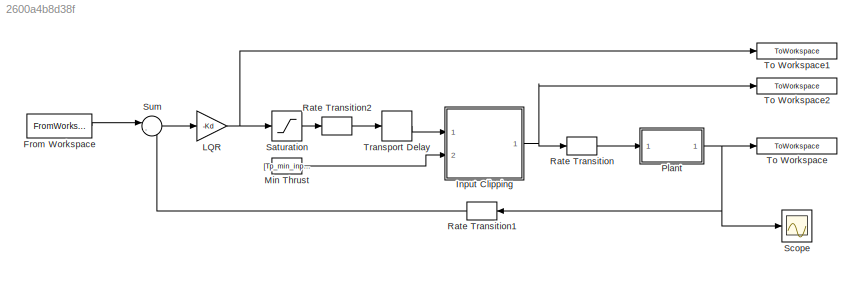
MODEL slx_2600a4b8d38f
KIND model
CONFIG AbsTol = auto
CONFIG FixedStep = 0.005
CONFIG MaxStep = auto
CONFIG MinStep = auto
CONFIG RelTol = 1e-3
CONFIG SampleTimeConstraint = Unconstrained
CONFIG Solver = FixedStepAuto
CONFIG SolverMode = Auto
CONFIG SolverName = FixedStepAuto
CONFIG StartTime = 0.0
CONFIG StopTime = t_f
BLOCK [FromWorkspace] From Workspace
  SampleTime = dt
  VariableName = setpoint
  ZeroCross = on
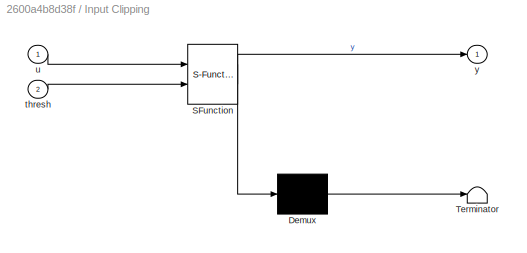
BLOCK [SubSystem] Input Clipping
  ErrorFcn = Stateflow.Translate.translate
  PermitHierarchicalResolution = ExplicitOnly
  Ports = [2, 1]
  RequestExecContextInheritance = off
  SFBlockType = MATLAB Function
  TreatAsAtomicUnit = on
  Variant = off
BLOCK [Demux] Input Clipping/ Demux 
  Outputs = 1
  Ports = [1, 1]
BLOCK [S-Function] Input Clipping/ SFunction 
  EnableBusSupport = on
  FunctionName = sf_sfun
  PortCounts = [2 2]
  Ports = [2, 2]
  SFunctionDeploymentMode = off
  Tag = Stateflow S-Function LQR_sim_non_linear_model 2
BLOCK [Terminator] Input Clipping/ Terminator 
BLOCK [Inport] Input Clipping/thresh
  IconDisplay = Port number
  Port = 2
BLOCK [Inport] Input Clipping/u
  IconDisplay = Port number
BLOCK [Outport] Input Clipping/y
  IconDisplay = Port number
BLOCK [Gain] LQR
  Gain = -Kd
  Multiplication = Matrix(K*u)
  OutDataTypeStr = Inherit: Inherit via internal rule
  ParamDataTypeStr = Inherit: Inherit via internal rule
  SaturateOnIntegerOverflow = off
BLOCK [Constant] Min Thrust
  SampleTime = -1
  Value = [Tp_min_input Tp_deadband Ts_min_input Ts_deadband]
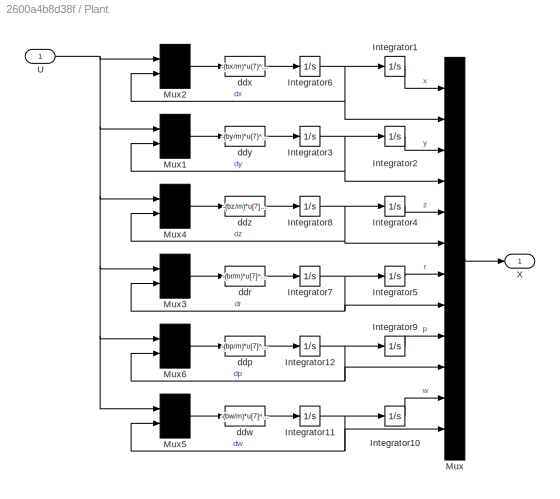
BLOCK [SubSystem] Plant
  Ports = [1, 1]
  RequestExecContextInheritance = off
  Variant = off
BLOCK [Integrator] Plant/Integrator1
  Ports = [1, 1]
BLOCK [Integrator] Plant/Integrator10
  Ports = [1, 1]
BLOCK [Integrator] Plant/Integrator11
  Ports = [1, 1]
BLOCK [Integrator] Plant/Integrator12
  Ports = [1, 1]
BLOCK [Integrator] Plant/Integrator2
  Ports = [1, 1]
BLOCK [Integrator] Plant/Integrator3
  Ports = [1, 1]
BLOCK [Integrator] Plant/Integrator4
  Ports = [1, 1]
BLOCK [Integrator] Plant/Integrator5
  Ports = [1, 1]
BLOCK [Integrator] Plant/Integrator6
  Ports = [1, 1]
BLOCK [Integrator] Plant/Integrator7
  Ports = [1, 1]
BLOCK [Integrator] Plant/Integrator8
  Ports = [1, 1]
BLOCK [Integrator] Plant/Integrator9
  Ports = [1, 1]
BLOCK [Mux] Plant/Mux
  DisplayOption = signals
  Inputs = 12
  Ports = [12, 1]
BLOCK [Mux] Plant/Mux1
  Inputs = 2
  Ports = [2, 1]
BLOCK [Mux] Plant/Mux2
  Inputs = 2
  Ports = [2, 1]
BLOCK [Mux] Plant/Mux3
  Inputs = 2
  Ports = [2, 1]
BLOCK [Mux] Plant/Mux4
  Inputs = 2
  Ports = [2, 1]
BLOCK [Mux] Plant/Mux5
  Inputs = 2
  Ports = [2, 1]
BLOCK [Mux] Plant/Mux6
  Inputs = 2
  Ports = [2, 1]
BLOCK [Inport] Plant/U
  IconDisplay = Port number
BLOCK [Outport] Plant/X
  IconDisplay = Port number
BLOCK [Fcn] Plant/ddp
  Expr = -(bp/m)*u[7]^2+(a*cos(b)/Ixx)*u[1]-(a*cos(b)/Ixx)*u[2]+(a*cos(b)/Ixx)*u[3]-(a*cos(b)/Ixx)*u[4]-((cos(c)*lbx+sin(c)*a)/Iyy)*u[5]+((cos(c)*lbx-sin(c)*a)/Iyy)*u[6]
BLOCK [Fcn] Plant/ddr
  Expr = -(br/m)*u[7]^2+(a*cos(b)/Ixx)*u[1]+(a*cos(b)/Ixx)*u[2]-(a*cos(b)/Ixx)*u[3]-(a*cos(b)/Ixx)*u[4]
BLOCK [Fcn] Plant/ddw
  Expr = -(bw/m)*u[7]^2+((lay*cos(b)+lax*sin(b))/Izz)*u[1]-((lay*cos(b)+lax*sin(b))/Izz)*u[2]+((lay*cos(b)+lax*sin(b))/Izz)*u[3]-((lay*cos(b)+lax*sin(b))/Izz)*u[4]+((cos(c)*a-sin(c)*lbx)/Izz)*u[5]-((cos(c)*a-sin(c)*lbx)/Izz)*u[6]
BLOCK [Fcn] Plant/ddx
  Expr = -(bx/m)*u(7)^2+(cos(b)/m)*u(1)+(cos(b)/m)*u(2)+(cos(b)/m)*u(3)+(cos(b)/m)*u(4)
BLOCK [Fcn] Plant/ddy
  Expr = -(by/m)*u(7)^2+(sin(b)/m)*u(1)-(sin(b)/m)*u(2)-(sin(b)/m)*u(3)+(sin(b)/m)*u(4)-(sin(c)/m)*u(5)+(sin(c)/m)*u(6)
BLOCK [Fcn] Plant/ddz
  Expr = -(bz/m)*u[7]^2+(cos(c)/m)*u[5]+(cos(c)/m)*u[6]
BLOCK [RateTransition] Rate Transition
  OutPortSampleTimeOpt = Inherit
BLOCK [RateTransition] Rate Transition1
  OutPortSampleTime = dt
BLOCK [RateTransition] Rate Transition2
BLOCK [Saturate] Saturation
  InputPortMap = u0
  LowerLimit = [TpL TpL TpL TpL TsL TsL]
  Ports = [1, 1]
  UpperLimit = [TpU TpU TpU TpU TsU TsU]
BLOCK [Scope] Scope
  Ports = [1]
  ScopeSpecificationString = Simulink.scopes.TimeScopeBlockCfg('CurrentConfiguration', extmgr.ConfigurationSet(extmgr.Configuration('Core','General UI',true),extmgr.Configuration('Core','Source UI',true),extmgr.Configuration('Sources','WiredSimulink',true),extmgr.Configuration('Visuals','Time Domain',true,'SerializedDisplays',{struct('MinYLimReal','-13783712029596123013798159326328556854804767678654316544.00000','MaxYLimReal'...<+1949ch>
BLOCK [Sum] Sum
  IconShape = round
  InputSameDT = off
  Inputs = |-+
  OutDataTypeStr = Inherit: Inherit via internal rule
  Ports = [2, 1]
  SaturateOnIntegerOverflow = off
BLOCK [ToWorkspace] To Workspace
  FixptAsFi = on
  MaxDataPoints = inf
  Ports = [1]
  SampleTime = -1
  Save2DSignal = 3-D array (concatenate along third dimension)
  SaveFormat = Structure With Time
  VariableName = sim_state
BLOCK [ToWorkspace] To Workspace1
  FixptAsFi = on
  MaxDataPoints = inf
  Ports = [1]
  SampleTime = -1
  Save2DSignal = 3-D array (concatenate along third dimension)
  SaveFormat = Structure With Time
  VariableName = sim_u
BLOCK [ToWorkspace] To Workspace2
  FixptAsFi = on
  MaxDataPoints = inf
  Ports = [1]
  SampleTime = -1
  Save2DSignal = 3-D array (concatenate along third dimension)
  SaveFormat = Structure With Time
  VariableName = sim_u_clipped
BLOCK [TransportDelay] Transport Delay
  DelayTime = 0.06
  Ports = [1, 1]
LINE From Workspace:1 -> Sum:1
NET Input Clipping:1 -> Rate Transition:1, To Workspace2:1
NET LQR:1 -> Saturation:1, To Workspace1:1
LINE Min Thrust:1 -> Input Clipping:2
LINE Plant/Integrator10:1 -> Plant/Mux:11
NET Plant/Integrator11:1 -> Plant/Integrator10:1, Plant/Mux5:2, Plant/Mux:12
NET Plant/Integrator12:1 -> Plant/Integrator9:1, Plant/Mux6:2, Plant/Mux:10
LINE Plant/Integrator1:1 -> Plant/Mux:1
LINE Plant/Integrator2:1 -> Plant/Mux:3
NET Plant/Integrator3:1 -> Plant/Integrator2:1, Plant/Mux1:2, Plant/Mux:4
LINE Plant/Integrator4:1 -> Plant/Mux:5
LINE Plant/Integrator5:1 -> Plant/Mux:7
NET Plant/Integrator6:1 -> Plant/Integrator1:1, Plant/Mux2:2, Plant/Mux:2
NET Plant/Integrator7:1 -> Plant/Integrator5:1, Plant/Mux3:2, Plant/Mux:8
NET Plant/Integrator8:1 -> Plant/Integrator4:1, Plant/Mux4:2, Plant/Mux:6
LINE Plant/Integrator9:1 -> Plant/Mux:9
LINE Plant/Mux1:1 -> Plant/ddy:1
LINE Plant/Mux2:1 -> Plant/ddx:1
LINE Plant/Mux3:1 -> Plant/ddr:1
LINE Plant/Mux4:1 -> Plant/ddz:1
LINE Plant/Mux5:1 -> Plant/ddw:1
LINE Plant/Mux6:1 -> Plant/ddp:1
LINE Plant/Mux:1 -> Plant/X:1
NET Plant/U:1 -> Plant/Mux1:1, Plant/Mux2:1, Plant/Mux3:1, Plant/Mux4:1, Plant/Mux5:1, Plant/Mux6:1
LINE Plant/ddp:1 -> Plant/Integrator12:1
LINE Plant/ddr:1 -> Plant/Integrator7:1
LINE Plant/ddw:1 -> Plant/Integrator11:1
LINE Plant/ddx:1 -> Plant/Integrator6:1
LINE Plant/ddy:1 -> Plant/Integrator3:1
LINE Plant/ddz:1 -> Plant/Integrator8:1
NET Plant:1 -> Rate Transition1:1, Scope:1, To Workspace:1
LINE Rate Transition1:1 -> Sum:2
LINE Rate Transition2:1 -> Transport Delay:1
LINE Rate Transition:1 -> Plant:1
LINE Saturation:1 -> Rate Transition2:1
LINE Sum:1 -> LQR:1
LINE Transport Delay:1 -> Input Clipping:1
note: NET lines group one-source signal fan-out (src -> all destinations, sorted); 1:1 wires keep LINE
CHART Input Clipping states=1 transitions=1
  STATE_LABEL 'eML_blk_kernel()'
  STATE_LABEL 'SCRIPT:\nfunction y = fcn(u,thresh)\n\nfor i = 1:4\n    if (u(i) > 0 && u(i) < thresh(1))\n        if u(i) > thresh(2)\n            u(i) = thresh(1);\n        else\n            u(i) = 0;\n        end\n    elseif (u(i) < 0 && u(i) > -thresh(1))\n        if u(i) < -thresh(2)\n            u(i) = -thresh(1);\n        else\n            u(i) = 0;\n        end\n    end\nend\nfor i = 5:6\n    if (u(i) > 0 && u(i) < thresh(3...<+276ch>'
